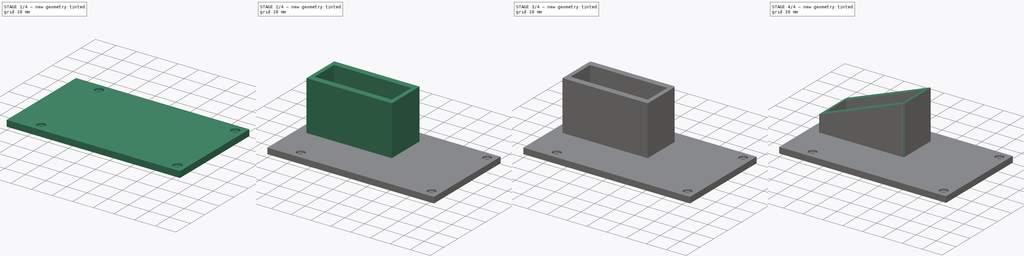
[diagram: build sequence overview — one tinted view per stage of 4, left to right]
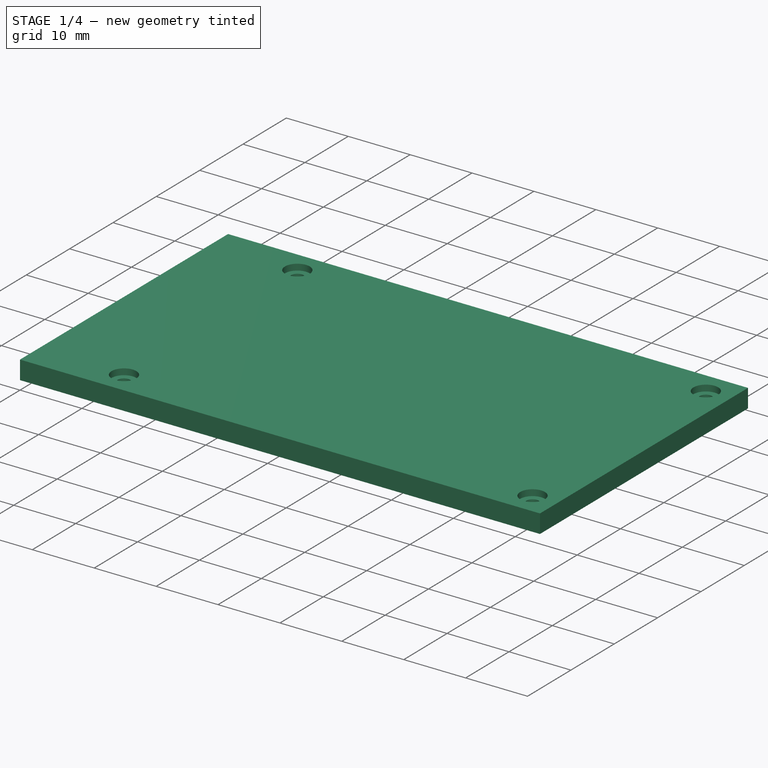
[diagram: stage 1 of 4 — iso view after this stage's code; geometry added in this stage tinted green]
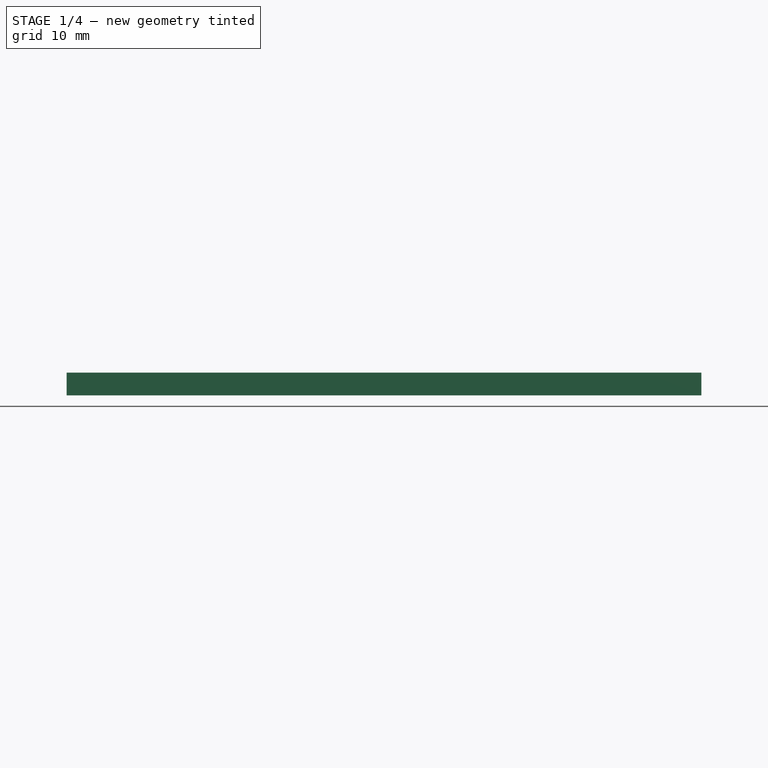
[diagram: stage 1 of 4 — front view after this stage's code; geometry added in this stage tinted green]
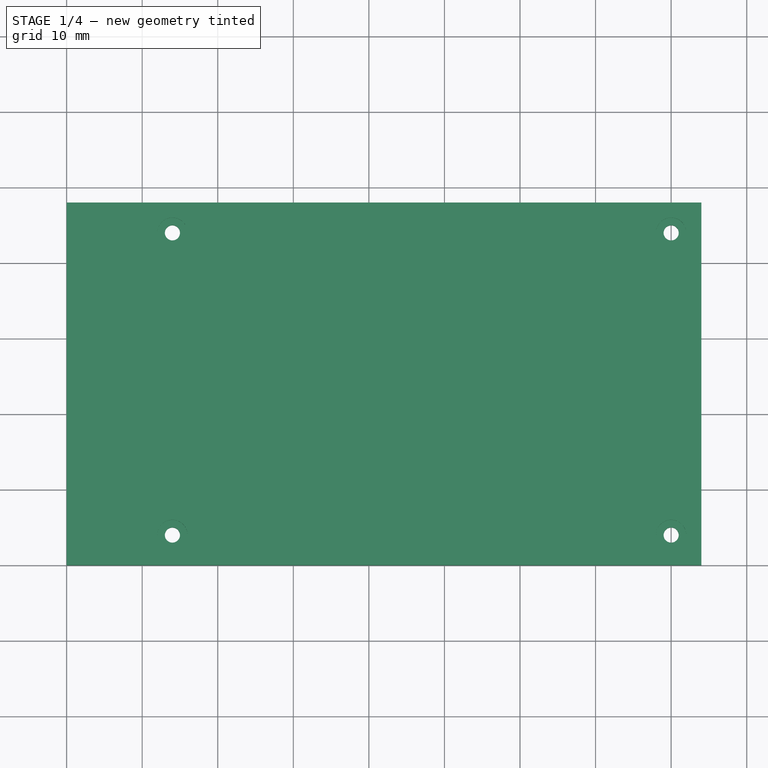
[diagram: stage 1 of 4 — top view after this stage's code; geometry added in this stage tinted green]
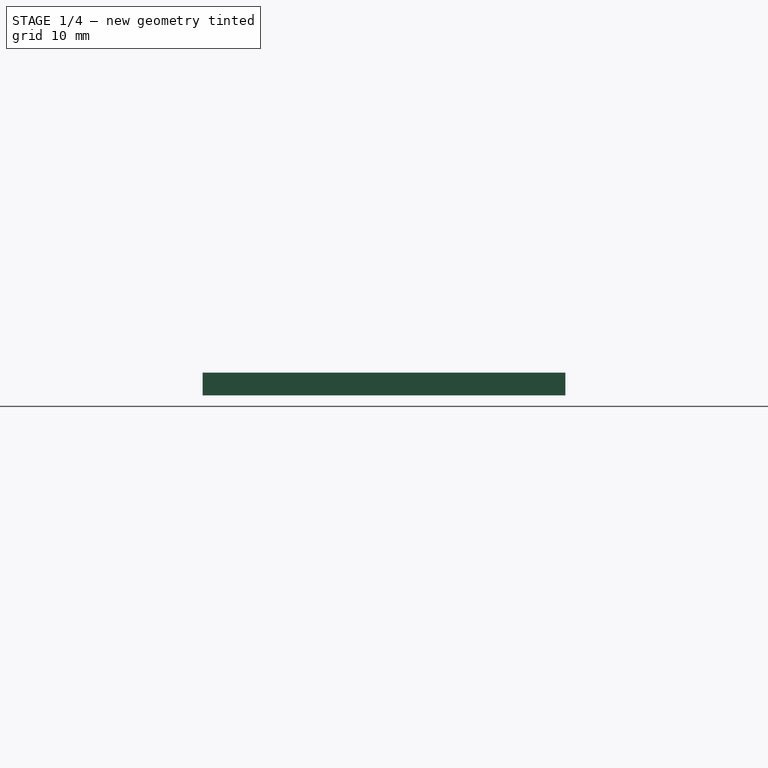
[diagram: stage 1 of 4 — right view after this stage's code; geometry added in this stage tinted green]
FCSTD DOCUMENT  (FreeCAD 0.16R6706 (Git))
Label: iROB-EA_Modulo_Sensores_Tapa_V2
License: All rights reserved
LicenseURL: http://en.wikipedia.org/wiki/All_rights_reserved
objects: Sketcher::SketchObject×7, PartDesign::Pocket×4, PartDesign::Fillet×4, PartDesign::Pad×3
note: 25 computed .brp shape members not serialized (recipe doc carries the construction recipe); baked Part::Feature solids carry a one-line shape summary decoded from their .brp

FEATURE [Sketcher::SketchObject] Sketch  label="Base"
  sketch-geometry (4):
    g0: LineSegment StartX=0 StartY=48 StartZ=0 EndX=84 EndY=48 EndZ=0
    g1: LineSegment StartX=84 StartY=48 StartZ=0 EndX=84 EndY=0 EndZ=0
    g2: LineSegment StartX=84 StartY=0 StartZ=0 EndX=0 EndY=0 EndZ=0
    g3: LineSegment StartX=0 StartY=0 StartZ=0 EndX=0 EndY=48 EndZ=0
  constraints (11):
    c: Coincident(g0,g1)
    c: Coincident(g1,g2)
    c: Coincident(g2,g3)
    c: Coincident(g3,g0)
    c: Horizontal(g0)
    c: Horizontal(g2)
    c: Vertical(g1)
    c: Vertical(g3)
    c: DistanceX(g0,g0) = 84
    c: DistanceY(g1,g1) = 48
    c: Coincident(g2,g-1)
FEATURE [PartDesign::Pad] Pad
  Length = 3
  Length2 = 100
  Sketch = -> Sketch
  Type = 0
FEATURE [Sketcher::SketchObject] Sketch001  label="Taladro_Tornillos"
  Placement = pos=(0,0,3) rot=(0,0,1;0rad)
  Support = -> Pad [Face6]
  sketch-geometry (4):
    g0: Circle CenterX=14 CenterY=4 CenterZ=0 NormalX=0 NormalY=0 NormalZ=1 Radius=1
    g1: Circle CenterX=14 CenterY=44 CenterZ=0 NormalX=0 NormalY=0 NormalZ=1 Radius=1
    g2: Circle CenterX=80 CenterY=44 CenterZ=0 NormalX=0 NormalY=0 NormalZ=1 Radius=1
    g3: Circle CenterX=80 CenterY=4 CenterZ=0 NormalX=0 NormalY=0 NormalZ=1 Radius=1
  constraints (12):
    c: Radius(g0) = 1
    c: Radius(g1) = 1
    c: DistanceX(g1,g0) = 0
    c: DistanceY(g0,g1) = 40
    c: Radius(g2) = 1
    c: Radius(g3) = 1
    c: DistanceX(g3,g2) = 0
    c: DistanceY(g3,g2) = 40
    c: DistanceY(g3,g0) = 0
    c: DistanceX(g0,g3) = 66
    c: DistanceX(g-1,g0) = 14
    c: DistanceY(g-1,g0) = 4
FEATURE [PartDesign::Pocket] Pocket
  Length = 5
  Sketch = -> Sketch001
  Type = 0
FEATURE [Sketcher::SketchObject] Sketch002  label="Taldro_Tornillos_Diametro"
  Placement = pos=(0,0,3) rot=(0,0,1;0rad)
  Support = -> Pocket [Face5]
  sketch-geometry (4):
    g0: Circle CenterX=14 CenterY=44 CenterZ=0 NormalX=0 NormalY=0 NormalZ=1 Radius=2
    g1: Circle CenterX=80 CenterY=44 CenterZ=0 NormalX=0 NormalY=0 NormalZ=1 Radius=2
    g2: Circle CenterX=14 CenterY=4 CenterZ=0 NormalX=0 NormalY=0 NormalZ=1 Radius=2
    g3: Circle CenterX=80 CenterY=4 CenterZ=0 NormalX=0 NormalY=0 NormalZ=1 Radius=2
  constraints (12):
    c: Radius(g0) = 2
    c: Radius(g1) = 2
    c: DistanceY(g0,g1) = 0
    c: DistanceX(g0,g1) = 66
    c: Radius(g2) = 2
    c: Radius(g3) = 2
    c: DistanceY(g3,g2) = 0
    c: DistanceX(g2,g3) = 66
    c: DistanceX(g2,g0) = 0
    c: DistanceY(g2,g0) = 40
    c: DistanceX(g-1,g2) = 14
    c: DistanceY(g-1,g2) = 4
FEATURE [PartDesign::Pocket] Pocket001
  Length = 1
  Sketch = -> Sketch002
  Type = 0
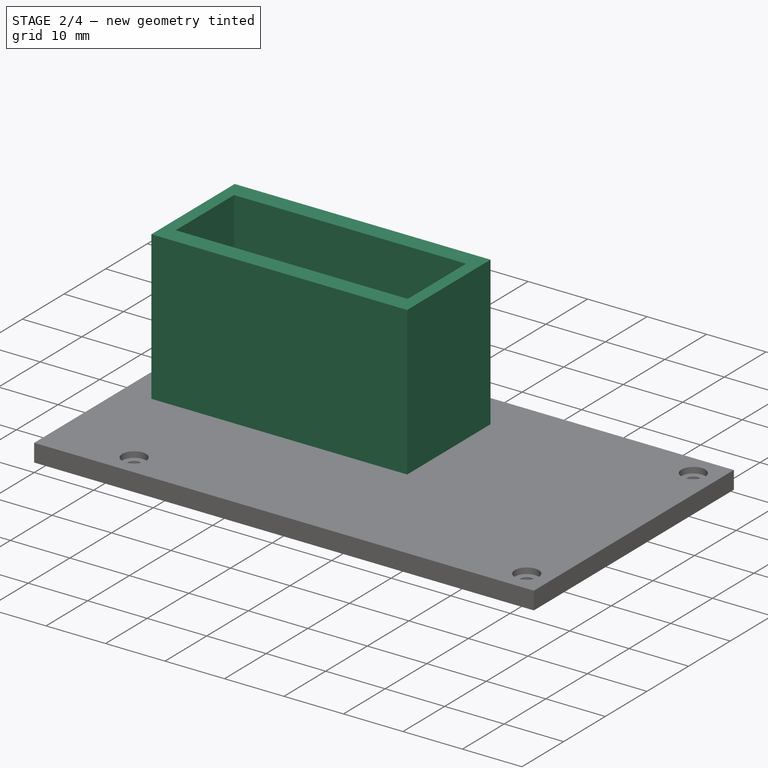
[diagram: stage 2 of 4 — iso view after this stage's code; geometry added in this stage tinted green]
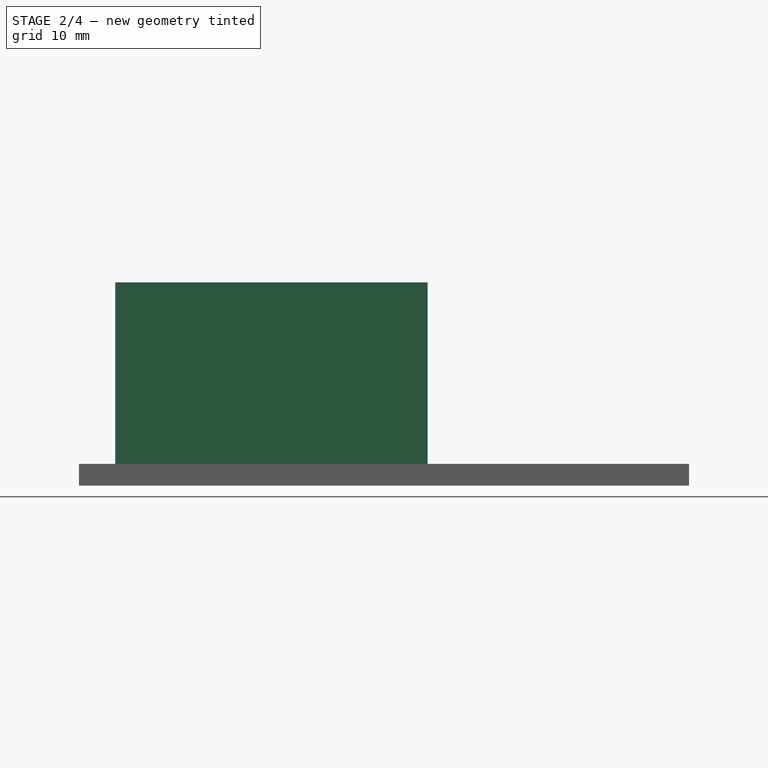
[diagram: stage 2 of 4 — front view after this stage's code; geometry added in this stage tinted green]
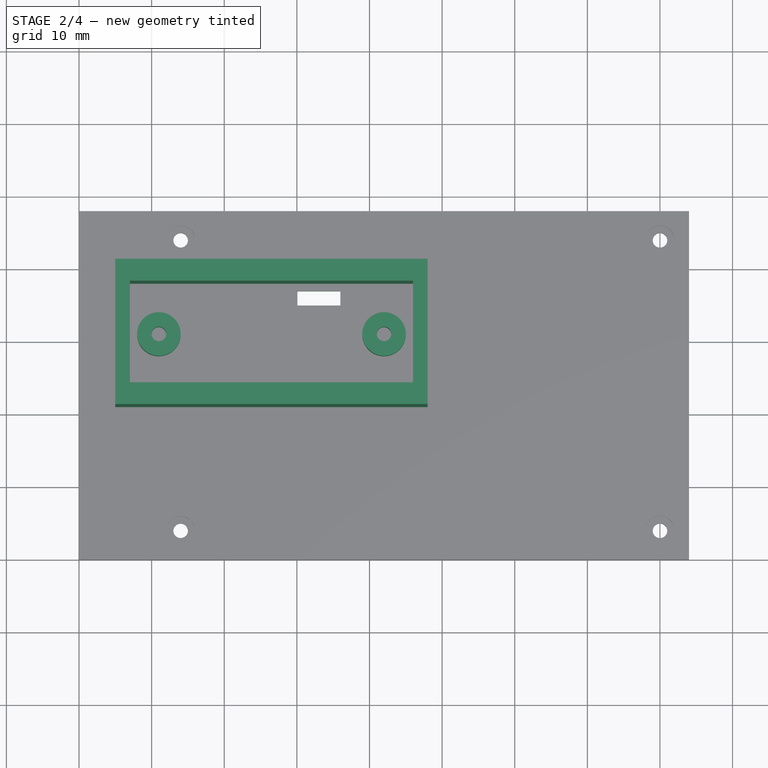
[diagram: stage 2 of 4 — top view after this stage's code; geometry added in this stage tinted green]
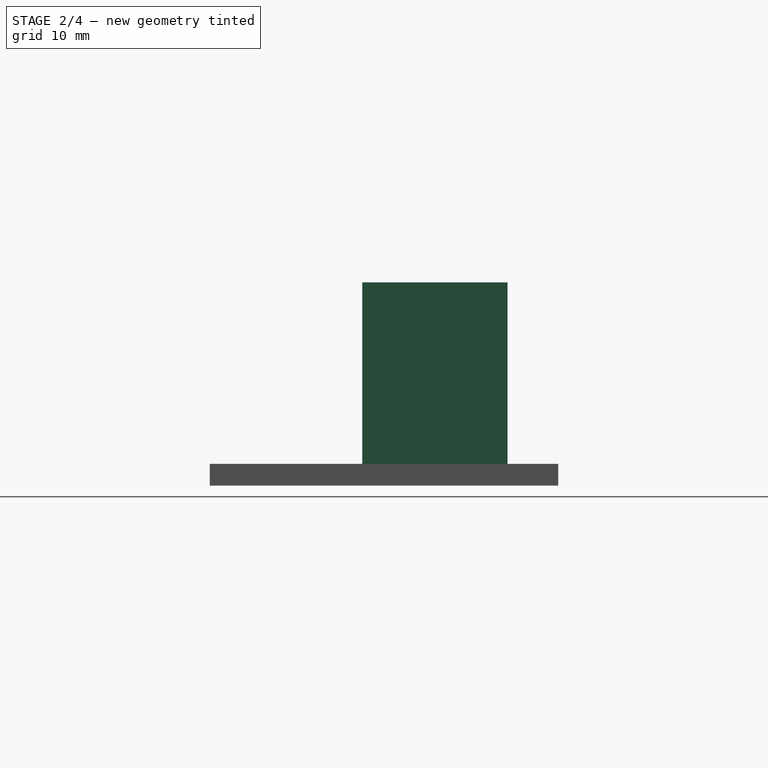
[diagram: stage 2 of 4 — right view after this stage's code; geometry added in this stage tinted green]
FEATURE [Sketcher::SketchObject] Sketch003  label="Recinto_Sensor_Luz"
  Placement = pos=(0,0,3) rot=(0,0,1;0rad)
  Support = -> Pocket001 [Face5]
  sketch-geometry (8):
    g0: LineSegment StartX=5 StartY=41 StartZ=0 EndX=48 EndY=41 EndZ=0
    g1: LineSegment StartX=48 StartY=41 StartZ=0 EndX=48 EndY=21 EndZ=0
    g2: LineSegment StartX=48 StartY=21 StartZ=0 EndX=5 EndY=21 EndZ=0
    g3: LineSegment StartX=5 StartY=21 StartZ=0 EndX=5 EndY=41 EndZ=0
    g4: LineSegment StartX=7 StartY=38 StartZ=0 EndX=46 EndY=38 EndZ=0
    g5: LineSegment StartX=46 StartY=38 StartZ=0 EndX=46 EndY=24 EndZ=0
    g6: LineSegment StartX=46 StartY=24 StartZ=0 EndX=7 EndY=24 EndZ=0
    g7: LineSegment StartX=7 StartY=24 StartZ=0 EndX=7 EndY=38 EndZ=0
  constraints (24):
    c: Coincident(g0,g1)
    c: Coincident(g1,g2)
    c: Coincident(g2,g3)
    c: Coincident(g3,g0)
    c: Horizontal(g0)
    c: Horizontal(g2)
    c: Vertical(g1)
    c: Vertical(g3)
    c: DistanceX(g0,g0) = 43
    c: DistanceY(g1,g1) = 20
    c: Coincident(g4,g5)
    c: Coincident(g5,g6)
    c: Coincident(g6,g7)
    c: Coincident(g7,g4)
    c: Horizontal(g4)
    c: Horizontal(g6)
    c: Vertical(g5)
    c: Vertical(g7)
    c: DistanceX(g4,g4) = 39
    c: DistanceY(g5,g5) = 14
    c: DistanceX(g2,g6) = 2
    c: DistanceY(g2,g6) = 3
    c: DistanceY(g-1,g2) = 21
    c: DistanceX(g-1,g2) = 5
FEATURE [PartDesign::Pad] Pad001
  Length = 25
  Length2 = 100
  Sketch = -> Sketch003
  Type = 0
FEATURE [Sketcher::SketchObject] Sketch004  label="Ranura_cable"
  Placement = pos=(0,0,3) rot=(0,0,1;0rad)
  Support = -> Pad001 [Face28]
  sketch-geometry (4):
    g0: LineSegment StartX=30 StartY=37 StartZ=0 EndX=36 EndY=37 EndZ=0
    g1: LineSegment StartX=36 StartY=37 StartZ=0 EndX=36 EndY=35 EndZ=0
    g2: LineSegment StartX=36 StartY=35 StartZ=0 EndX=30 EndY=35 EndZ=0
    g3: LineSegment StartX=30 StartY=35 StartZ=0 EndX=30 EndY=37 EndZ=0
  constraints (12):
    c: Coincident(g0,g1)
    c: Coincident(g1,g2)
    c: Coincident(g2,g3)
    c: Coincident(g3,g0)
    c: Horizontal(g0)
    c: Horizontal(g2)
    c: Vertical(g1)
    c: Vertical(g3)
    c: DistanceX(g0,g0) = 6
    c: DistanceY(g3,g3) = 2
    c: DistanceY(g-1,g2) = 35
    c: DistanceX(g2,g-1) = -30
FEATURE [PartDesign::Pocket] Pocket002
  Length = 5
  Sketch = -> Sketch004
  Type = 0
FEATURE [Sketcher::SketchObject] Sketch005  label="Soportes_Circuito"
  Placement = pos=(0,0,3) rot=(0,0,1;0rad)
  Support = -> Pocket002 [Face25]
  sketch-geometry (4):
    g0: Circle CenterX=11 CenterY=31 CenterZ=0 NormalX=0 NormalY=0 NormalZ=1 Radius=1
    g1: Circle CenterX=11 CenterY=31 CenterZ=0 NormalX=0 NormalY=0 NormalZ=1 Radius=3
    g2: Circle CenterX=42 CenterY=31 CenterZ=0 NormalX=0 NormalY=0 NormalZ=1 Radius=1
    g3: Circle CenterX=42 CenterY=31 CenterZ=0 NormalX=0 NormalY=0 NormalZ=1 Radius=3
  constraints (10):
    c: Radius(g0) = 1
    c: Radius(g1) = 3
    c: Coincident(g0,g1)
    c: Radius(g2) = 1
    c: Radius(g3) = 3
    c: Coincident(g2,g3)
    c: DistanceY(g2,g0) = 0
    c: DistanceX(g0,g2) = 31
    c: DistanceY(g-1,g0) = 31
    c: DistanceX(g-1,g0) = 11
FEATURE [PartDesign::Pad] Pad002
  Length = 5
  Length2 = 100
  Sketch = -> Sketch005
  Type = 0
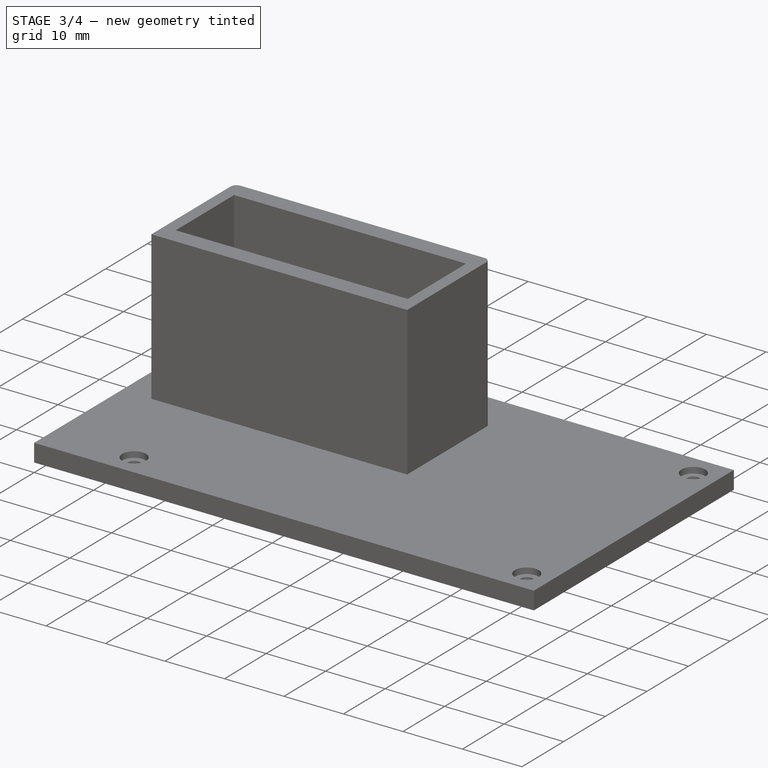
[diagram: stage 3 of 4 — iso view after this stage's code; geometry added in this stage tinted green]
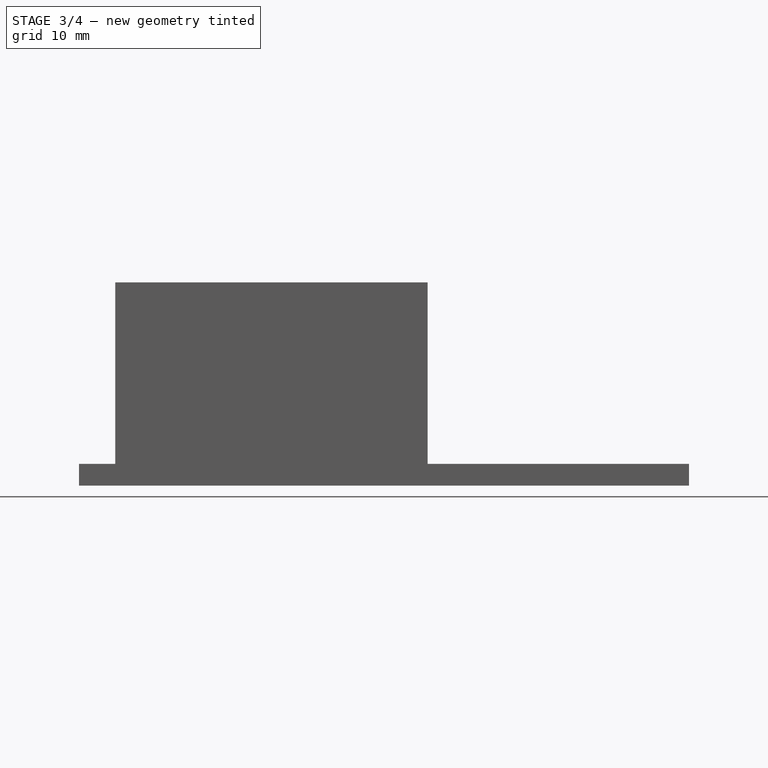
[diagram: stage 3 of 4 — front view after this stage's code; geometry added in this stage tinted green]
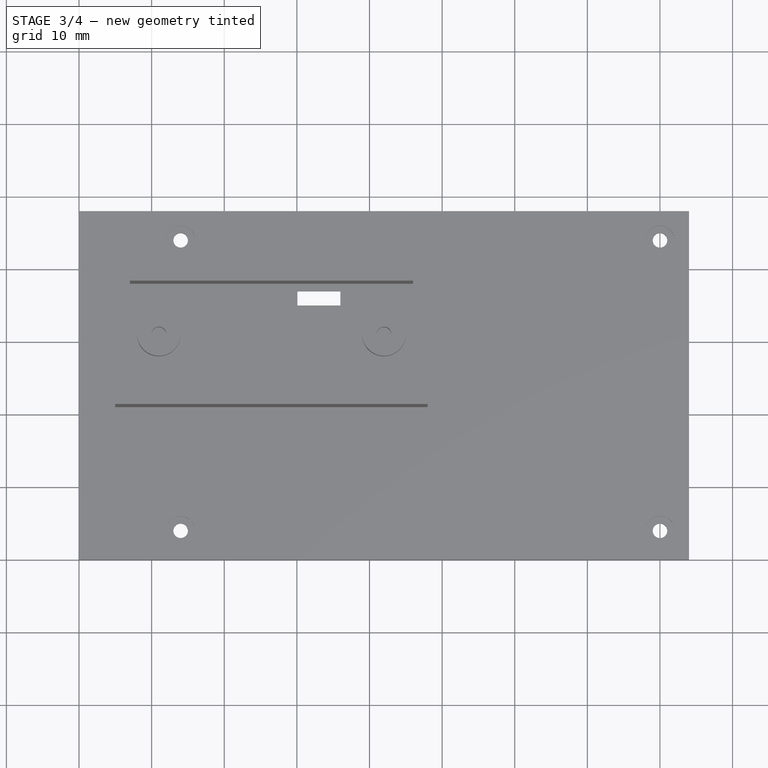
[diagram: stage 3 of 4 — top view after this stage's code; geometry added in this stage tinted green]
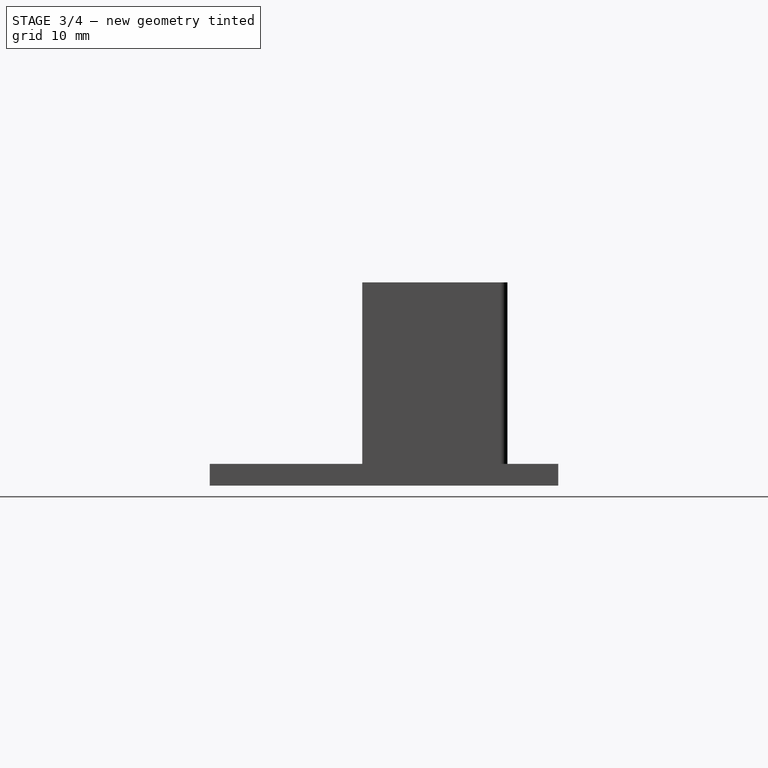
[diagram: stage 3 of 4 — right view after this stage's code; geometry added in this stage tinted green]
FEATURE [PartDesign::Fillet] Fillet
  Base = -> Pad002 [Edge45]
  Radius = 1
FEATURE [PartDesign::Fillet] Fillet001
  Base = -> Fillet [Edge21]
  Radius = 1
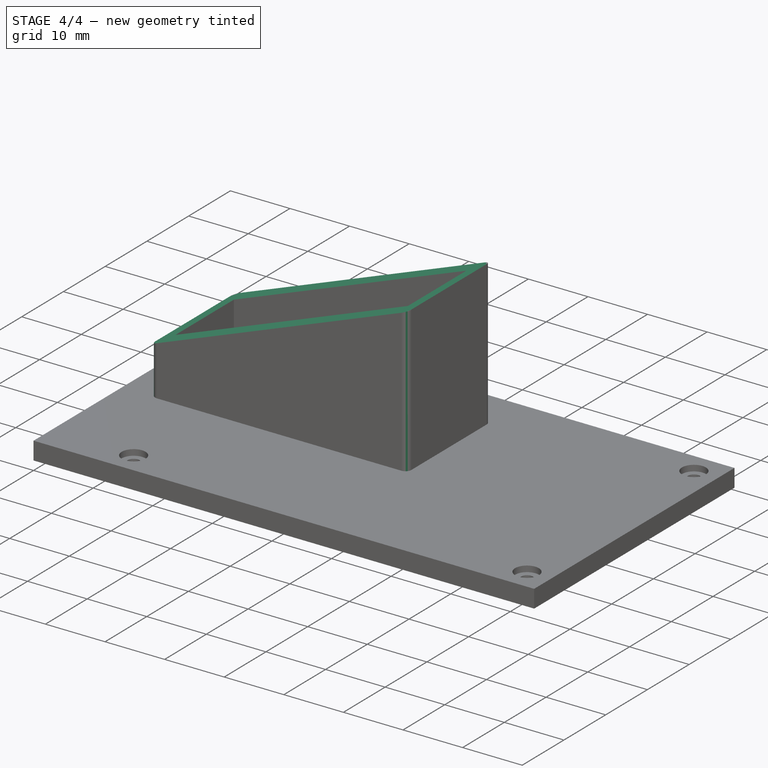
[diagram: stage 4 of 4 — iso view after this stage's code; geometry added in this stage tinted green]
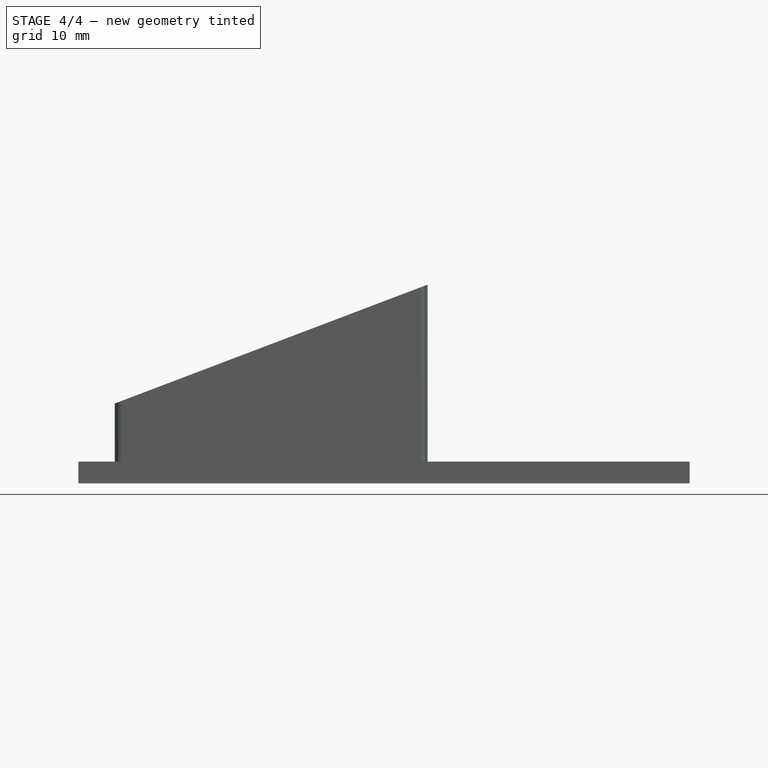
[diagram: stage 4 of 4 — front view after this stage's code; geometry added in this stage tinted green]
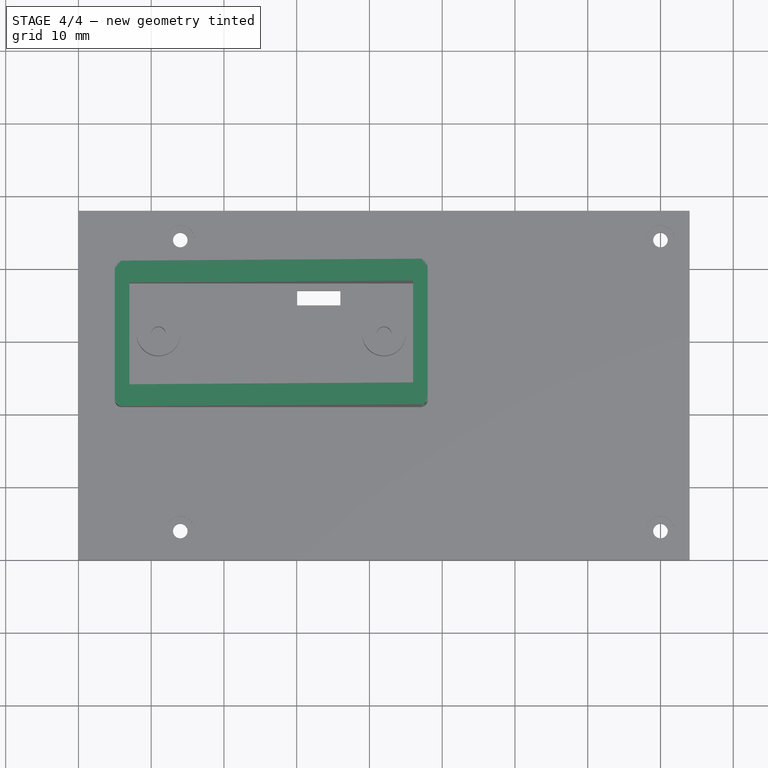
[diagram: stage 4 of 4 — top view after this stage's code; geometry added in this stage tinted green]
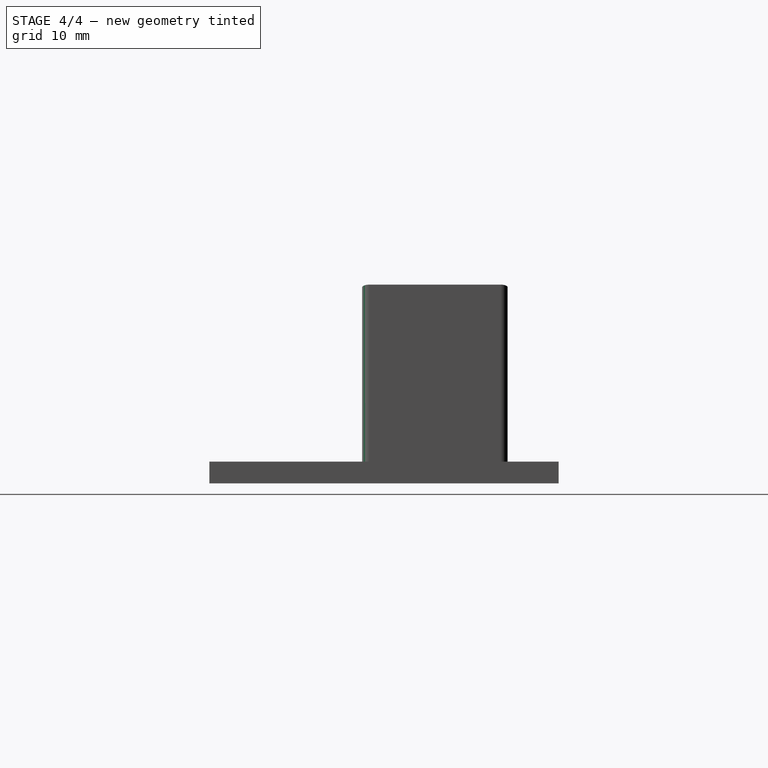
[diagram: stage 4 of 4 — right view after this stage's code; geometry added in this stage tinted green]
FEATURE [PartDesign::Fillet] Fillet002
  Base = -> Fillet001 [Edge22]
  Radius = 1
FEATURE [PartDesign::Fillet] Fillet003
  Base = -> Fillet002 [Edge23]
  Radius = 1
FEATURE [Sketcher::SketchObject] Sketch006  label="Inclinacion"
  Placement = pos=(0,21,0) rot=(1,0,0;1.5708rad)
  Support = -> Fillet003 [Face2]
  sketch-geometry (3):
    g0: LineSegment StartX=2.40818 StartY=29 StartZ=0 EndX=52.4082 EndY=29 EndZ=0
    g1: LineSegment StartX=2.40818 StartY=29 StartZ=0 EndX=2.40818 EndY=10 EndZ=0
    g2: LineSegment StartX=2.40818 StartY=10 StartZ=0 EndX=52.4082 EndY=29 EndZ=0
  constraints (8):
    c: Horizontal(g0)
    c: Vertical(g1)
    c: Coincident(g1,g0)
    c: Coincident(g2,g1)
    c: Coincident(g2,g0)
    c: DistanceX(g0,g0) = 50
    c: DistanceY(g-1,g1) = 10
    c: DistanceY(g1,g1) = 19
FEATURE [PartDesign::Pocket] Pocket003
  Length = 30
  Sketch = -> Sketch006
  Type = 0
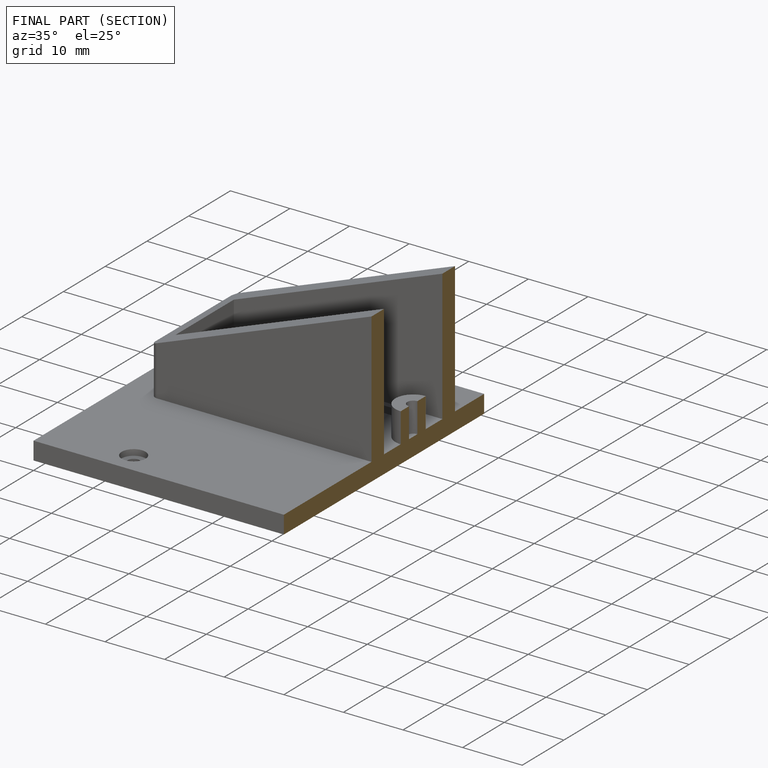
[diagram: finished part — half-section view (interior)]
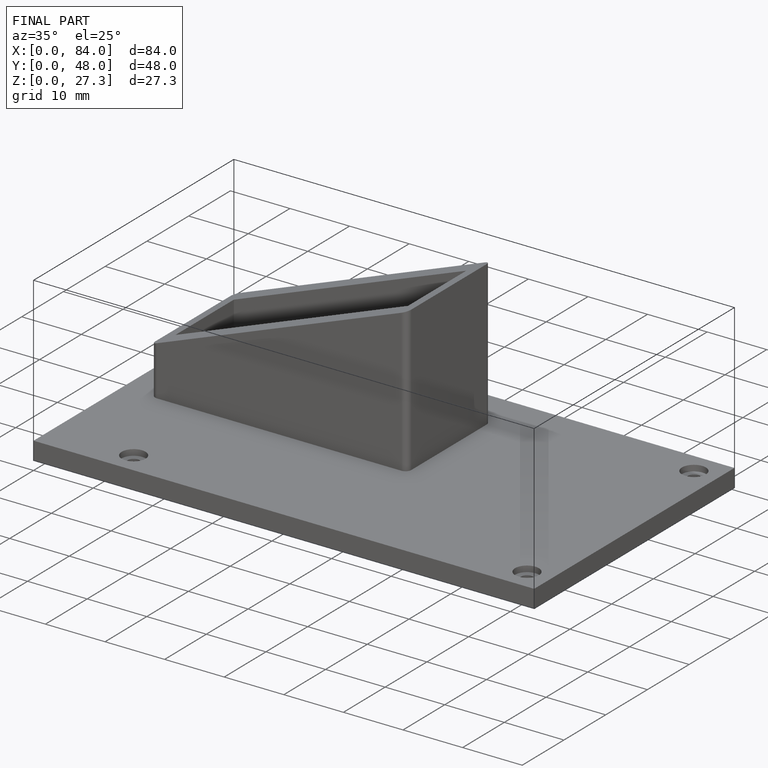
[diagram: finished part — iso view with bounding-box wireframe]
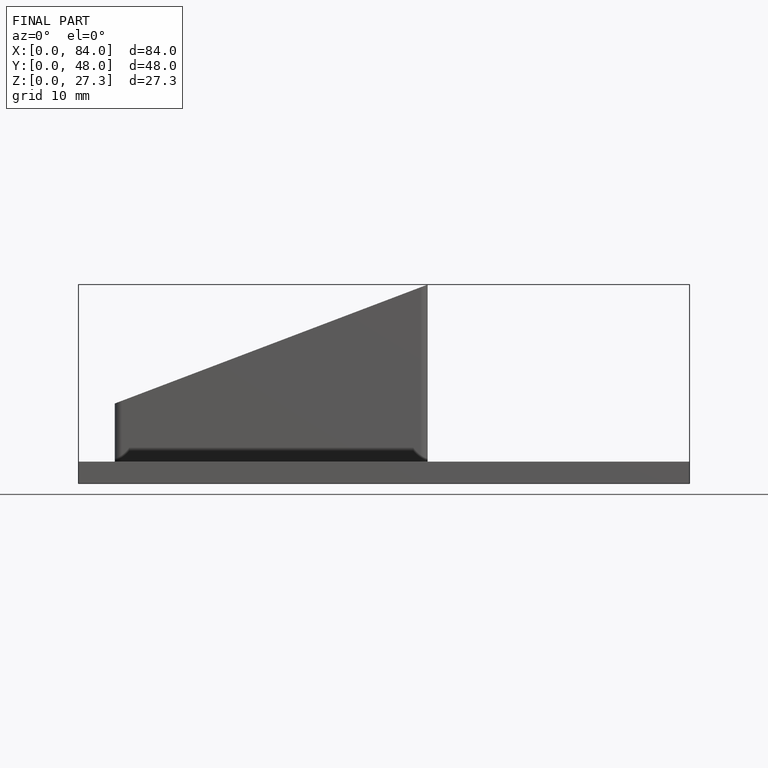
[diagram: finished part — front view with bounding-box wireframe]
